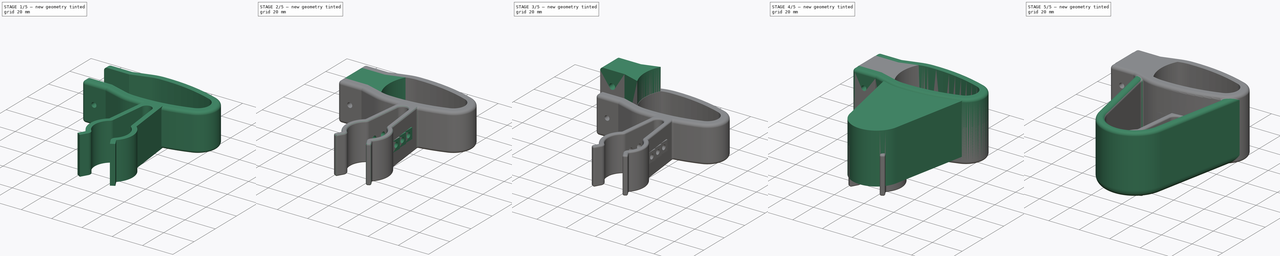
[diagram: build sequence overview — one tinted view per stage of 5, left to right]
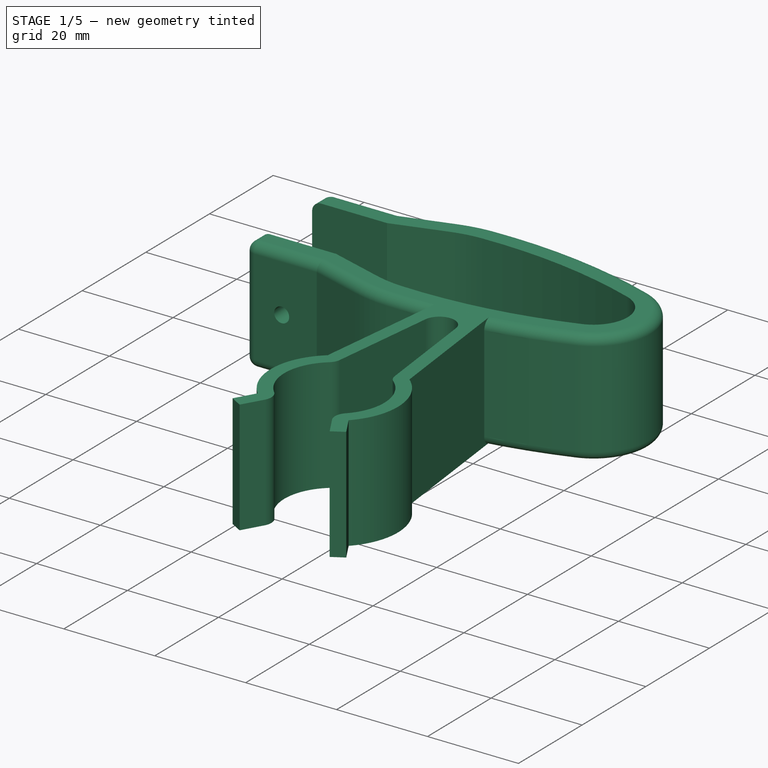
[diagram: stage 1 of 5 — iso view after this stage's code; geometry added in this stage tinted green]
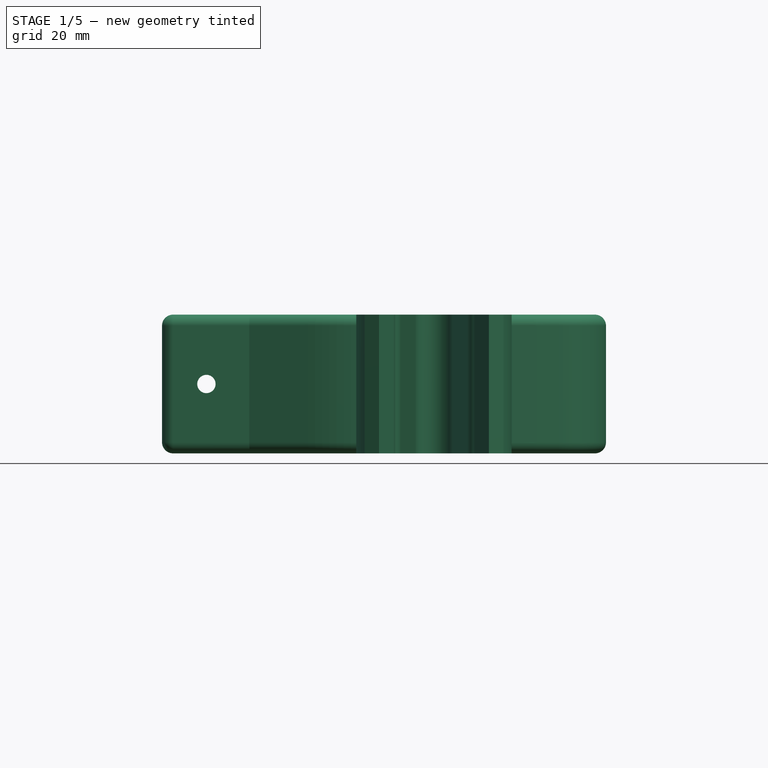
[diagram: stage 1 of 5 — front view after this stage's code; geometry added in this stage tinted green]
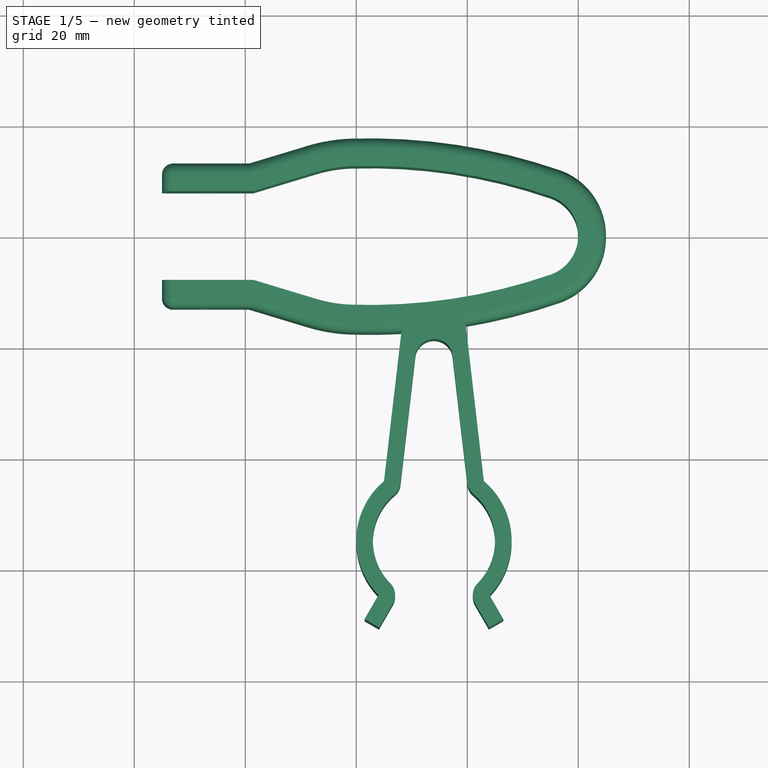
[diagram: stage 1 of 5 — top view after this stage's code; geometry added in this stage tinted green]
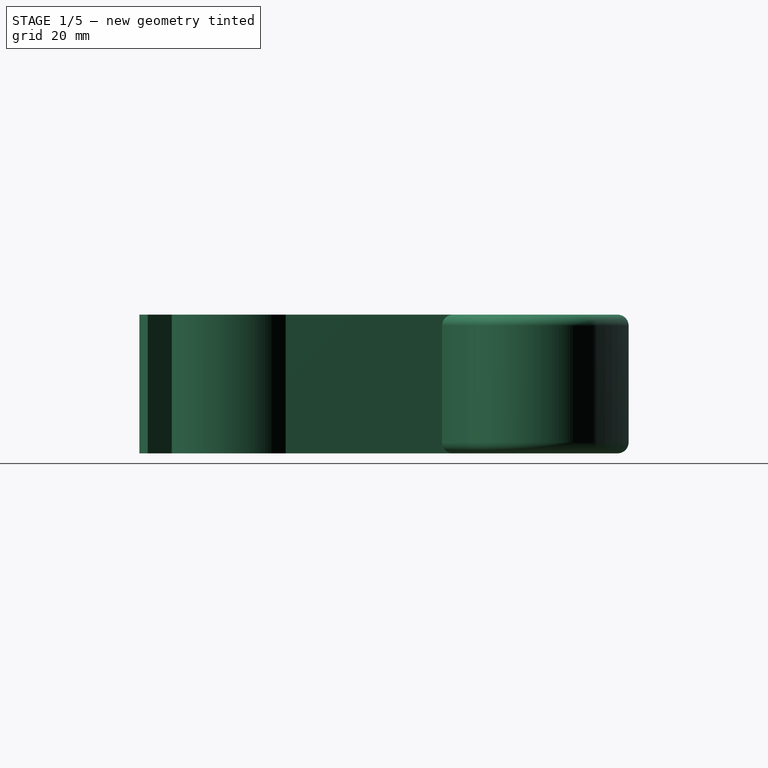
[diagram: stage 1 of 5 — right view after this stage's code; geometry added in this stage tinted green]
FCSTD DOCUMENT  (FreeCAD 0.21R30193 (Git))
Label: Cane-rest
License: All rights reserved
LicenseURL: http://en.wikipedia.org/wiki/All_rights_reserved
objects: Sketcher::SketchObject×13, PartDesign::Pad×7, PartDesign::Fillet×6, PartDesign::Pocket×6, PartDesign::Body×5, PartDesign::Thickness×3, Part::MultiFuse×1, Part::Fillet×1
note: 64 computed .brp shape members not serialized (recipe doc carries the construction recipe); baked Part::Feature solids carry a one-line shape summary decoded from their .brp

FEATURE [PartDesign::Body] Body002  label="Bottom-Block"
  Group = -> [Sketch004,Pad002,Sketch005,Pocket002,Fillet003]
  Origin = -> Origin002
  Placement = pos=(-30,0,0) rot=(0,0,1;0rad)
  Tip = -> Fillet003
FEATURE [Sketcher::SketchObject] Sketch006
  FullyConstrained = false
  MapMode = 5
  Support = -> [XY_Plane003]
  expr: Constraints[12] = Sketch.Constraints[12]
  expr: Constraints[19] = Sketch.Constraints[19]
  expr: Constraints[20] = Sketch.Constraints[20]
  expr: Constraints[21] = Sketch.Constraints[21]
  expr: Constraints[27] = Sketch.Constraints[27]
  expr: Constraints[37] = Sketch.Constraints[37]
  expr: Constraints[3] = Sketch.Constraints[3]
  expr: Constraints[40] = Sketch.Constraints[40]
  expr: Constraints[4] = Sketch.Constraints[4]
  sketch-geometry (16):
    g0: ArcOfCircle CenterX=32.5 CenterY=0 CenterZ=0 NormalX=0 NormalY=0 NormalZ=1 AngleXU=0 Radius=7.5 StartAngle=5.04366 EndAngle=7.52271
    g1: GeomPoint X=40 Y=0 Z=0
    g2: ArcOfCircle CenterX=0 CenterY=-12.5097 CenterZ=0 NormalX=0 NormalY=0 NormalZ=1 AngleXU=0 Radius=25 StartAngle=1.603 EndAngle=1.86459
    g3: ArcOfCircle CenterX=0 CenterY=12.5097 CenterZ=0 NormalX=0 NormalY=0 NormalZ=1 AngleXU=0 Radius=25 StartAngle=4.41859 EndAngle=4.68018
    g4: GeomPoint X=0 Y=13.7207 Z=0
    g5: ArcOfCircle CenterX=15 CenterY=0 CenterZ=0 NormalX=0 NormalY=0 NormalZ=1 AngleXU=0 Radius=25 StartAngle=2.66724 EndAngle=3.61594
    g6: GeomPoint X=-10 Y=0 Z=0
    g7: ArcOfCircle CenterX=2.41506 CenterY=-87.4708 CenterZ=0 NormalX=0 NormalY=0 NormalZ=1 AngleXU=0 Radius=100 StartAngle=1.23953 EndAngle=1.603
    g8: ArcOfCircle CenterX=2.41506 CenterY=87.4708 CenterZ=0 NormalX=0 NormalY=0 NormalZ=1 AngleXU=0 Radius=100 StartAngle=4.68018 EndAngle=5.04366
    g9: GeomPoint X=0 Y=12.5 Z=0
    g10: GeomPoint X=0 Y=-12.5 Z=0
    g11: LineSegment StartX=-7.23972 StartY=11.4191 StartZ=0 EndX=-18.5404 EndY=8 EndZ=0
    g12: LineSegment StartX=-18.5404 StartY=8 StartZ=0 EndX=-35 EndY=8 EndZ=0
    g13: LineSegment StartX=-35 StartY=8 StartZ=0 EndX=-35 EndY=-8 EndZ=0
    g14: LineSegment StartX=-35 StartY=-8 StartZ=0 EndX=-18.5404 EndY=-8 EndZ=0
    g15: LineSegment StartX=-18.5404 StartY=-8 StartZ=0 EndX=-7.23972 EndY=-11.4191 EndZ=0
  constraints (41):
    c: PointOnObject(g0,g-1)
    c: PointOnObject(g1,g0)
    c: PointOnObject(g1,g-1)
    c: DistanceX(g1) = 40
    c: Diameter(g0) = 15
    c: PointOnObject(g2,g-2)
    c: Equal(g3,g2)
    c: Vertical(g3,g2)
    c: Vertical(g3,g2)
    c: Vertical(g0,g0)
    c: PointOnObject(g6,g5)
    c: PointOnObject(g6,g-1)
    c: DistanceX(g6,g1) = 50
    c: Coincident(g3,g5)
    c: Coincident(g5,g2)
    c: Coincident(g7,g0)
    c: Tangent(g7,g2) = -1.5708
    c: Tangent(g8,g3) = -1.5708
    c: Tangent(g8,g0) = -1.5708
    c: Radius(g2) = 25
    c: Radius(g5) = 25
    c: Radius(g7) = 100
    c: PointOnObject(g3,g-2)
    c: PointOnObject(g9,g7)
    c: PointOnObject(g10,g8)
    c: PointOnObject(g10,g-2)
    c: PointOnObject(g9,g-2)
    c: DistanceY(g10,g9) = 25
    c: Tangent(g2,g11) = -1.5708
    c: Coincident(g11,g12)
    c: Horizontal(g12)
    c: Coincident(g12,g13)
    c: Vertical(g13)
    c: Coincident(g13,g14)
    c: Horizontal(g14)
    c: Coincident(g14,g15)
    c: Coincident(g15,g3)
    c: DistanceX(g12,g6) = 25
    c: PointOnObject(g5,g-1)
    c: Symmetric(g14,g11,g-1)
    c: DistanceY(g13,g13) = 16
FEATURE [PartDesign::Pad] Pad003
  Direction = (0,0,1)
  Length = 25
  Length2 = 10
  Profile = -> Sketch006
  ReferenceAxis = -> Sketch006 [N_Axis]
  Type = 0
FEATURE [PartDesign::Thickness] Thickness002
  Base = -> Pad003 [Face12,Face6,Face11]
  BaseFeature = -> Pad003
  Intersection = false
  Join = 1
  Mode = 0
  SupportTransform = false
  Value = 5
FEATURE [PartDesign::Fillet] Fillet004
  Base = -> Thickness002 [Edge32,Edge30,Edge29,Edge42,Edge38,Edge39,Edge40,Edge41,Edge43,Edge52,Edge44,Edge51]
  BaseFeature = -> Thickness002
  Radius = 2
  SupportTransform = false
  UseAllEdges = false
FEATURE [Sketcher::SketchObject] Sketch007
  FullyConstrained = true
  MapMode = 5
  Placement = pos=(0,0,0) rot=(1,0,0;1.5708rad)
  Support = -> [XZ_Plane003]
  sketch-geometry (1):
    g0: Circle CenterX=-27 CenterY=12.5 CenterZ=0 NormalX=0 NormalY=0 NormalZ=1 AngleXU=0 Radius=1.65
  constraints (3):
    c: Diameter(g0) = 3.3
    c: DistanceX(g0) = -27
    c: DistanceY(g0) = 12.5
FEATURE [PartDesign::Pocket] Pocket003
  BaseFeature = -> Fillet004
  Direction = (0,1,2e-16)
  Length = 5
  Length2 = 5
  Midplane = true
  Profile = -> Sketch007
  ReferenceAxis = -> Sketch007 [N_Axis]
  Type = 1
FEATURE [PartDesign::Body] Body004  label="Upper-Block"
  Group = -> [Sketch008,Pad004,Fillet005,Sketch009,Pocket004]
  Origin = -> Origin004
  Placement = pos=(90,0,0) rot=(0,0,1;0rad)
  Tip = -> Pocket004
FEATURE [Sketcher::SketchObject] Sketch010
  AttachmentOffset = pos=(0,0,0.01) rot=(0,0,1;0rad)
  FullyConstrained = false
  MapMode = 5
  Placement = pos=(0,0,0.01) rot=(0,0,1;0rad)
  Support = -> [XY_Plane003]
  sketch-geometry (25):
    g0: LineSegment StartX=14 StartY=0 StartZ=0 EndX=14 EndY=-55 EndZ=0
    g1: ArcOfCircle CenterX=14 CenterY=-55 CenterZ=0 NormalX=0 NormalY=0 NormalZ=1 AngleXU=0 Radius=11 StartAngle=5.50799 EndAngle=7.15576
    g2: ArcOfCircle CenterX=14 CenterY=-55 CenterZ=0 NormalX=0 NormalY=0 NormalZ=1 AngleXU=0 Radius=14 StartAngle=5.50799 EndAngle=7.15576
    g3: ArcOfCircle CenterX=14 CenterY=-55 CenterZ=0 NormalX=0 NormalY=0 NormalZ=1 AngleXU=0 Radius=11 StartAngle=2.26902 EndAngle=3.91679
    g4: ArcOfCircle CenterX=14 CenterY=-55 CenterZ=0 NormalX=0 NormalY=0 NormalZ=1 AngleXU=0 Radius=14 StartAngle=2.26902 EndAngle=3.91679
    g5: ArcOfCircle CenterX=24 CenterY=-64.798 CenterZ=0 NormalX=0 NormalY=0 NormalZ=1 AngleXU=0 Radius=3 StartAngle=2.3664 EndAngle=3.66519
    g6: ArcOfCircle CenterX=4 CenterY=-64.798 CenterZ=0 NormalX=0 NormalY=0 NormalZ=1 AngleXU=0 Radius=3 StartAngle=5.75959 EndAngle=7.05838
    g7: LineSegment StartX=14 StartY=-55 StartZ=0 EndX=24 EndY=-64.798 EndZ=0
    g8: LineSegment StartX=14 StartY=-55 StartZ=0 EndX=4 EndY=-64.798 EndZ=0
    g9: LineSegment StartX=14 StartY=-55 StartZ=0 EndX=23 EndY=-44.2762 EndZ=0
    g10: LineSegment StartX=14 StartY=-55 StartZ=0 EndX=5 EndY=-44.2762 EndZ=0
    g11: LineSegment StartX=6.59808 StartY=-66.298 StartZ=0 EndX=4.09808 EndY=-70.6281 EndZ=0
    g12: LineSegment StartX=4.09808 StartY=-70.6281 StartZ=0 EndX=1.5 EndY=-69.1281 EndZ=0
    g13: LineSegment StartX=1.5 StartY=-69.1281 StartZ=0 EndX=4 EndY=-64.798 EndZ=0
    g14: LineSegment StartX=21.4019 StartY=-66.298 StartZ=0 EndX=23.9019 EndY=-70.6281 EndZ=0
    g15: LineSegment StartX=23.9019 StartY=-70.6281 StartZ=0 EndX=26.5 EndY=-69.1281 EndZ=0
    g16: LineSegment StartX=26.5 StartY=-69.1281 StartZ=0 EndX=24 EndY=-64.798 EndZ=0
    g17: ArcOfCircle CenterX=5 CenterY=-44.2762 CenterZ=0 NormalX=0 NormalY=0 NormalZ=1 AngleXU=0 Radius=3 StartAngle=5.41061 EndAngle=6.16731
    g18: ArcOfCircle CenterX=23 CenterY=-44.2762 CenterZ=0 NormalX=0 NormalY=0 NormalZ=1 AngleXU=0 Radius=3 StartAngle=3.25747 EndAngle=4.01417
    g19: ArcOfCircle CenterX=14 CenterY=-22 CenterZ=0 NormalX=0 NormalY=0 NormalZ=1 AngleXU=0 Radius=3.36414 StartAngle=0.115876 EndAngle=3.02572
    g20: LineSegment StartX=10.6584 StartY=-21.611 StartZ=0 EndX=7.97988 EndY=-44.623 EndZ=0
    g21: LineSegment StartX=17.3416 StartY=-21.611 StartZ=0 EndX=20.0201 EndY=-44.623 EndZ=0
    g22: LineSegment StartX=23 StartY=-44.2762 StartZ=0 EndX=19.3478 EndY=-12.8992 EndZ=0
    g23: LineSegment StartX=19.3478 StartY=-12.8992 StartZ=0 EndX=8.51609 EndY=-14.0685 EndZ=0
    g24: LineSegment StartX=8.51609 StartY=-14.0685 StartZ=0 EndX=5 EndY=-44.2762 EndZ=0
  constraints (62):
    c: PointOnObject(g0,g-1)
    c: Vertical(g0)
    c: DistanceY(g0,g0) = 55
    c: DistanceX(g0) = 14
    c: Coincident(g1,g0)
    c: Coincident(g2,g1)
    c: Coincident(g3,g1)
    c: Coincident(g4,g1)
    c: Coincident(g5,g2)
    c: Coincident(g5,g1)
    c: Coincident(g6,g4)
    c: Coincident(g6,g3)
    c: Equal(g5,g6)
    c: Coincident(g7,g1)
    c: Coincident(g7,g2)
    c: Coincident(g8,g1)
    c: Coincident(g8,g4)
    c: Coincident(g9,g1)
    c: Coincident(g9,g2)
    c: Coincident(g10,g1)
    c: Coincident(g10,g4)
    c: PointOnObject(g3,g10)
    c: PointOnObject(g1,g9)
    c: PointOnObject(g1,g7)
    c: PointOnObject(g3,g8)
    c: Symmetric(g4,g2,g0)
    c: Tangent(g6,g11) = 1.5708
    c: Coincident(g11,g12)
    c: Coincident(g12,g13)
    c: Coincident(g13,g4)
    c: Tangent(g5,g14) = -1.5708
    c: Coincident(g14,g15)
    c: Coincident(g15,g16)
    c: Coincident(g16,g2)
    c: Parallel(g11,g13)
    c: Parallel(g16,g14)
    c: Perpendicular(g15,g14)
    c: Perpendicular(g12,g11)
    c: Radius(g1) = 11
    c: Radius(g5) = 3
    c: Angle(g11,g-2) = 0.523599
    c: Symmetric(g11,g14,g0)
    c: DistanceX(g4,g2) = 20
    c: Distance(g11) = 5
    c: Symmetric(g2,g4,g0)
    c: DistanceX(g4,g2) = 18
    c: Coincident(g17,g4)
    c: Coincident(g17,g3)
    c: Coincident(g18,g2)
    c: Coincident(g18,g1)
    c: PointOnObject(g19,g0)
    c: Coincident(g2,g22)
    c: Coincident(g22,g23)
    c: Coincident(g23,g24)
    c: Coincident(g24,g4)
    c: Parallel(g24,g20)
    c: Parallel(g22,g21)
    c: Tangent(g20,g19) = -1.5708
    c: Tangent(g21,g19) = 1.5708
    c: Tangent(g21,g18) = -1.5708
    c: Tangent(g20,g17) = 1.5708
    c: DistanceY(g19) = -22
FEATURE [PartDesign::Pad] Pad005
  BaseFeature = -> Pocket003
  Direction = (0,0,1)
  Length = 24.98
  Length2 = 10
  Profile = -> Sketch010
  ReferenceAxis = -> Sketch010 [N_Axis]
  Type = 0
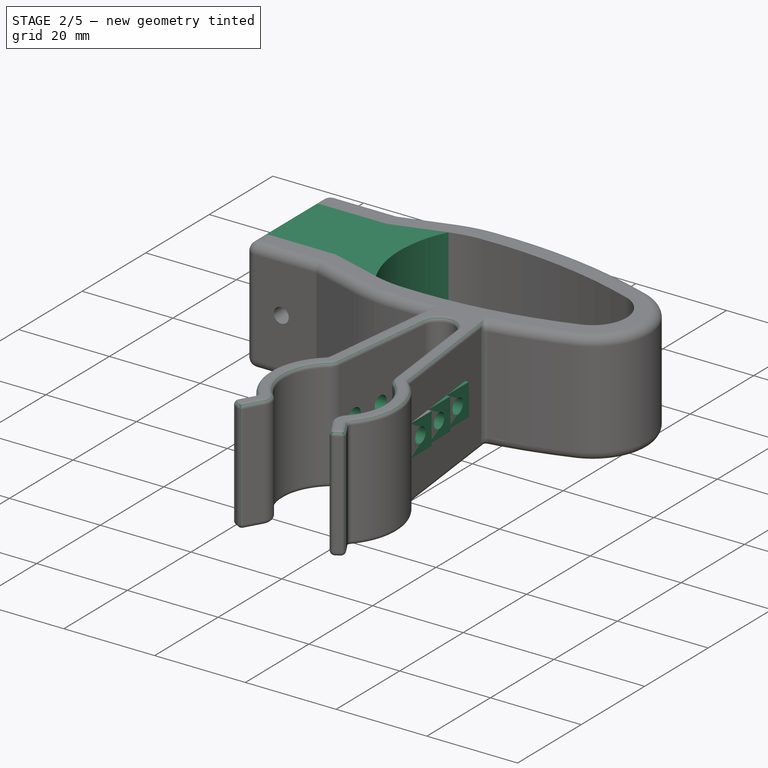
[diagram: stage 2 of 5 — iso view after this stage's code; geometry added in this stage tinted green]
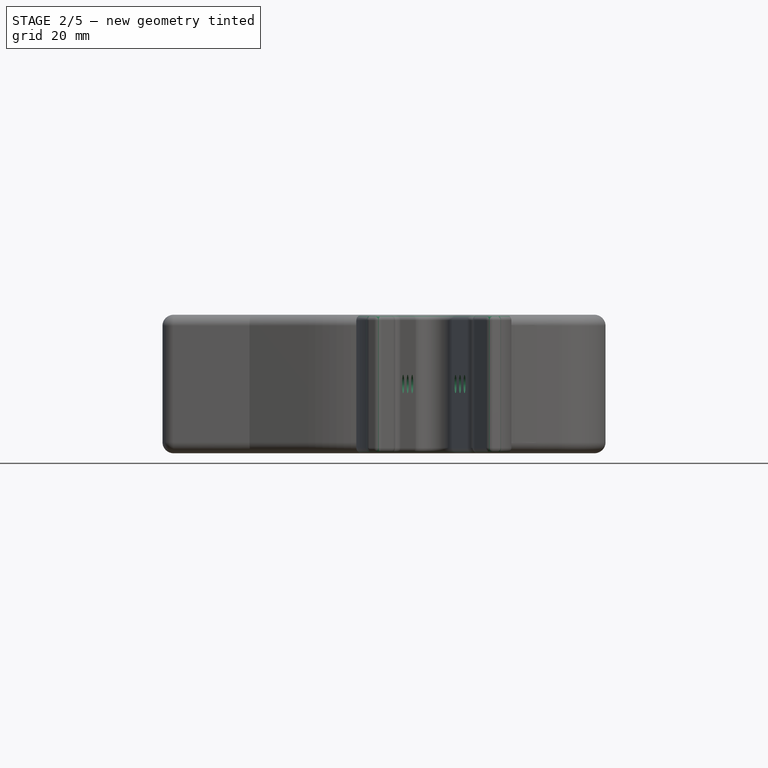
[diagram: stage 2 of 5 — front view after this stage's code; geometry added in this stage tinted green]
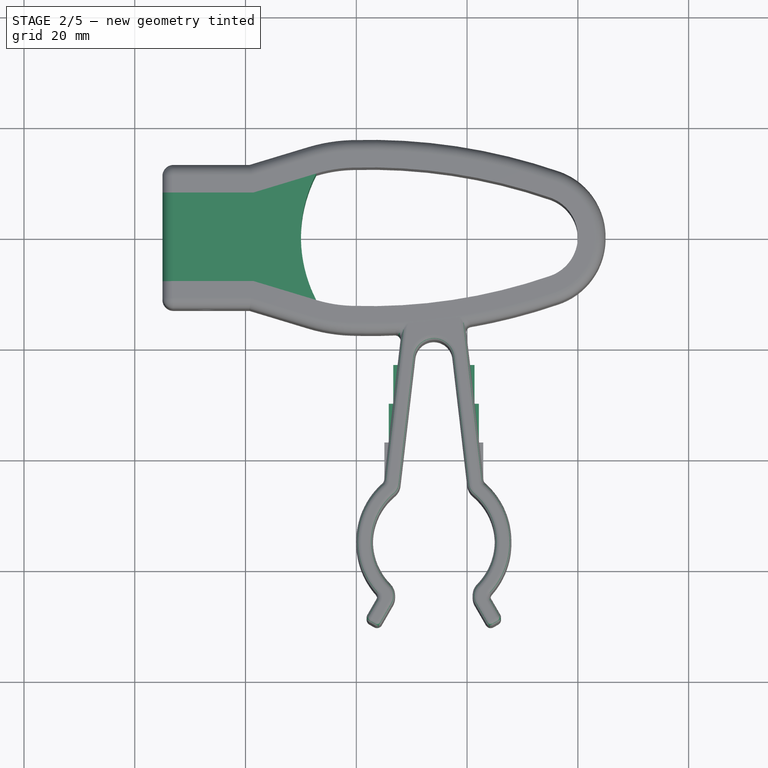
[diagram: stage 2 of 5 — top view after this stage's code; geometry added in this stage tinted green]
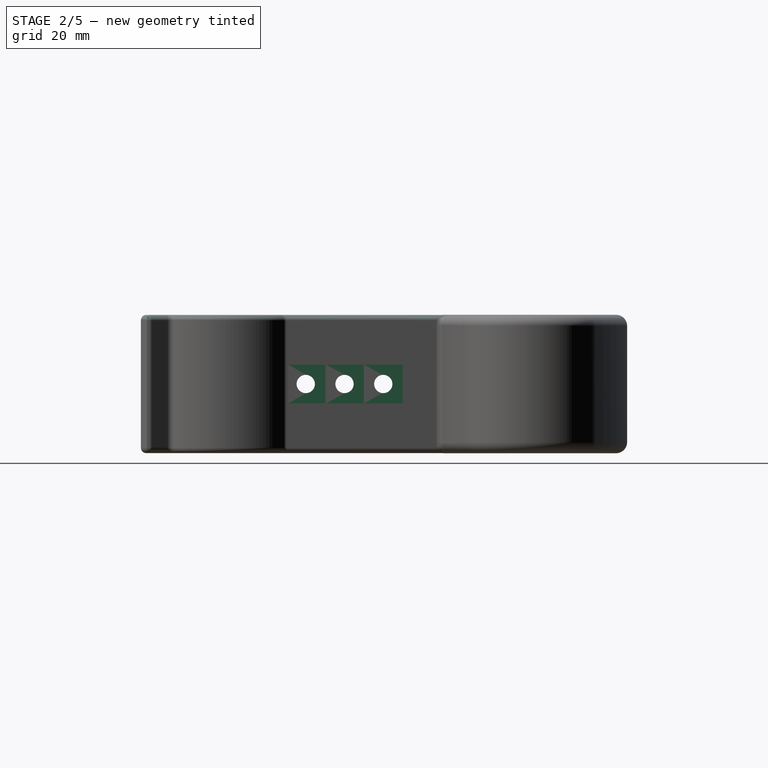
[diagram: stage 2 of 5 — right view after this stage's code; geometry added in this stage tinted green]
FEATURE [Sketcher::SketchObject] Sketch008
  FullyConstrained = false
  MapMode = 5
  Support = -> [XY_Plane004]
  expr: Constraints[12] = Sketch006.Constraints[12]
  expr: Constraints[19] = Sketch006.Constraints[19]
  expr: Constraints[20] = Sketch006.Constraints[20]
  expr: Constraints[21] = Sketch006.Constraints[21]
  expr: Constraints[27] = Sketch006.Constraints[27]
  expr: Constraints[37] = Sketch006.Constraints[37]
  expr: Constraints[3] = Sketch006.Constraints[3]
  expr: Constraints[40] = Sketch006.Constraints[40]
  expr: Constraints[4] = Sketch006.Constraints[4]
  sketch-geometry (16):
    g0: ArcOfCircle CenterX=32.5 CenterY=0 CenterZ=0 NormalX=0 NormalY=0 NormalZ=1 AngleXU=0 Radius=7.5 StartAngle=5.04366 EndAngle=7.52271
    g1: GeomPoint X=40 Y=0 Z=0
    g2: ArcOfCircle CenterX=0 CenterY=-12.5097 CenterZ=0 NormalX=0 NormalY=0 NormalZ=1 AngleXU=0 Radius=25 StartAngle=1.603 EndAngle=1.86459
    g3: ArcOfCircle CenterX=0 CenterY=12.5097 CenterZ=0 NormalX=0 NormalY=0 NormalZ=1 AngleXU=0 Radius=25 StartAngle=4.41859 EndAngle=4.68018
    g4: GeomPoint X=0 Y=13.7207 Z=0
    g5: ArcOfCircle CenterX=15 CenterY=0 CenterZ=0 NormalX=0 NormalY=0 NormalZ=1 AngleXU=0 Radius=25 StartAngle=2.66724 EndAngle=3.61594
    g6: GeomPoint X=-10 Y=0 Z=0
    g7: ArcOfCircle CenterX=2.41506 CenterY=-87.4708 CenterZ=0 NormalX=0 NormalY=0 NormalZ=1 AngleXU=0 Radius=100 StartAngle=1.23953 EndAngle=1.603
    g8: ArcOfCircle CenterX=2.41506 CenterY=87.4708 CenterZ=0 NormalX=0 NormalY=0 NormalZ=1 AngleXU=0 Radius=100 StartAngle=4.68018 EndAngle=5.04366
    g9: GeomPoint X=0 Y=12.5 Z=0
    g10: GeomPoint X=0 Y=-12.5 Z=0
    g11: LineSegment StartX=-7.23972 StartY=11.4191 StartZ=0 EndX=-18.5404 EndY=8 EndZ=0
    g12: LineSegment StartX=-18.5404 StartY=8 StartZ=0 EndX=-35 EndY=8 EndZ=0
    g13: LineSegment StartX=-35 StartY=8 StartZ=0 EndX=-35 EndY=-8 EndZ=0
    g14: LineSegment StartX=-35 StartY=-8 StartZ=0 EndX=-18.5404 EndY=-8 EndZ=0
    g15: LineSegment StartX=-18.5404 StartY=-8 StartZ=0 EndX=-7.23972 EndY=-11.4191 EndZ=0
  constraints (41):
    c: PointOnObject(g0,g-1)
    c: PointOnObject(g1,g0)
    c: PointOnObject(g1,g-1)
    c: DistanceX(g1) = 40
    c: Diameter(g0) = 15
    c: PointOnObject(g2,g-2)
    c: Equal(g3,g2)
    c: Vertical(g3,g2)
    c: Vertical(g3,g2)
    c: Vertical(g0,g0)
    c: PointOnObject(g6,g5)
    c: PointOnObject(g6,g-1)
    c: DistanceX(g6,g1) = 50
    c: Coincident(g3,g5)
    c: Coincident(g5,g2)
    c: Coincident(g7,g0)
    c: Tangent(g7,g2) = -1.5708
    c: Tangent(g8,g3) = -1.5708
    c: Tangent(g8,g0) = -1.5708
    c: Radius(g2) = 25
    c: Radius(g5) = 25
    c: Radius(g7) = 100
    c: PointOnObject(g3,g-2)
    c: PointOnObject(g9,g7)
    c: PointOnObject(g10,g8)
    c: PointOnObject(g10,g-2)
    c: PointOnObject(g9,g-2)
    c: DistanceY(g10,g9) = 25
    c: Tangent(g2,g11) = -1.5708
    c: Coincident(g11,g12)
    c: Horizontal(g12)
    c: Coincident(g12,g13)
    c: Vertical(g13)
    c: Coincident(g13,g14)
    c: Horizontal(g14)
    c: Coincident(g14,g15)
    c: Coincident(g15,g3)
    c: DistanceX(g12,g6) = 25
    c: PointOnObject(g5,g-1)
    c: Symmetric(g14,g11,g-1)
    c: DistanceY(g13,g13) = 16
FEATURE [PartDesign::Pad] Pad004
  Direction = (0,0,1)
  Length = 25
  Length2 = 10
  Profile = -> Sketch008
  ReferenceAxis = -> Sketch008 [N_Axis]
  Type = 0
FEATURE [PartDesign::Fillet] Fillet005
  Base = -> Pad004 [Edge13,Edge12]
  BaseFeature = -> Pad004
  Radius = 2
  SupportTransform = false
  UseAllEdges = false
FEATURE [PartDesign::Fillet] Fillet006
  Base = -> Pad005 [Face47,Face70,Face69,Face68,Face67,Face45,Face58,Face71,Face72]
  BaseFeature = -> Pad005
  Radius = 1
  SupportTransform = false
  UseAllEdges = false
FEATURE [Sketcher::SketchObject] Sketch011
  AttachmentOffset = pos=(0,0,12.5) rot=(0,0,1;0rad)
  FullyConstrained = false
  MapMode = 5
  Placement = pos=(0,0,12.5) rot=(0,0,1;0rad)
  Support = -> [XY_Plane003]
  sketch-geometry (17):
    g0: LineSegment StartX=14 StartY=0 StartZ=0 EndX=14 EndY=-40.9717 EndZ=0
    g1: LineSegment StartX=6.52173 StartY=-44 StartZ=0 EndX=5.07323 EndY=-44 EndZ=0
    g2: LineSegment StartX=5.07323 StartY=-44 StartZ=0 EndX=5.07323 EndY=-37 EndZ=0
    g3: LineSegment StartX=5.07323 StartY=-37 StartZ=0 EndX=5.867 EndY=-37 EndZ=0
    g4: LineSegment StartX=5.867 StartY=-37 StartZ=0 EndX=5.867 EndY=-30 EndZ=0
    g5: LineSegment StartX=5.867 StartY=-30 StartZ=0 EndX=6.66078 EndY=-30 EndZ=0
    g6: LineSegment StartX=6.66078 StartY=-30 StartZ=0 EndX=6.66078 EndY=-23 EndZ=0
    g7: LineSegment StartX=6.66078 StartY=-23 StartZ=0 EndX=9.16421 EndY=-23 EndZ=0
    g8: LineSegment StartX=9.16421 StartY=-23 StartZ=0 EndX=6.52173 EndY=-44 EndZ=0
    g9: LineSegment StartX=21.4783 StartY=-44 StartZ=0 EndX=22.9268 EndY=-44 EndZ=0
    g10: LineSegment StartX=22.9268 StartY=-44 StartZ=0 EndX=22.9268 EndY=-37 EndZ=0
    g11: LineSegment StartX=22.9268 StartY=-37 StartZ=0 EndX=22.133 EndY=-37 EndZ=0
    g12: LineSegment StartX=22.133 StartY=-37 StartZ=0 EndX=22.133 EndY=-30 EndZ=0
    g13: LineSegment StartX=22.133 StartY=-30 StartZ=0 EndX=21.3392 EndY=-30 EndZ=0
    g14: LineSegment StartX=21.3392 StartY=-30 StartZ=0 EndX=21.3392 EndY=-23 EndZ=0
    g15: LineSegment StartX=21.3392 StartY=-23 StartZ=0 EndX=18.8358 EndY=-23 EndZ=0
    g16: LineSegment StartX=18.8358 StartY=-23 StartZ=0 EndX=21.4783 EndY=-44 EndZ=0
  constraints (46):
    c: PointOnObject(g0,g-1)
    c: Vertical(g0)
    c: DistanceX(g0) = 14
    c: Horizontal(g1)
    c: Coincident(g1,g2)
    c: Vertical(g2)
    c: Coincident(g2,g3)
    c: Horizontal(g3)
    c: Coincident(g3,g4)
    c: Vertical(g4)
    c: Coincident(g4,g5)
    c: Coincident(g5,g6)
    c: Vertical(g6)
    c: Coincident(g6,g7)
    c: Coincident(g7,g8)
    c: Coincident(g8,g1)
    c: Horizontal(g9)
    c: Coincident(g9,g10)
    c: Vertical(g10)
    c: Coincident(g10,g11)
    c: Horizontal(g11)
    c: Coincident(g11,g12)
    c: Vertical(g12)
    c: Coincident(g12,g13)
    c: Horizontal(g13)
    c: Coincident(g13,g14)
    c: Vertical(g14)
    c: Coincident(g14,g15)
    c: Horizontal(g15)
    c: Coincident(g15,g16)
    c: Coincident(g16,g9)
    c: Equal(g10,g12)
    c: Equal(g12,g14)
    c: Equal(g14,g6)
    c: Equal(g6,g4)
    c: Equal(g4,g2)
    c: DistanceY(g10,g10) = 7
    c: Symmetric(g9,g1,g0)
    c: Equal(g9,g1)
    c: Horizontal(g7)
    c: Equal(g15,g7)
    c: Horizontal(g5)
    c: Equal(g11,g13)
    c: Equal(g13,g5)
    c: Equal(g5,g3)
    c: DistanceY(g14) = -23
FEATURE [PartDesign::Pad] Pad006
  BaseFeature = -> Fillet006
  Direction = (0,0,1)
  Length = 7
  Length2 = 10
  Midplane = true
  Profile = -> Sketch011
  ReferenceAxis = -> Sketch011 [N_Axis]
  Type = 0
FEATURE [Sketcher::SketchObject] Sketch012
  FullyConstrained = true
  MapMode = 5
  Placement = pos=(0,0,0) rot=(0.57735,0.57735,0.57735;2.0944rad)
  Support = -> [YZ_Plane003]
  sketch-geometry (3):
    g0: Circle CenterX=-40.5 CenterY=12.5 CenterZ=0 NormalX=0 NormalY=0 NormalZ=1 AngleXU=0 Radius=1.65
    g1: Circle CenterX=-33.5 CenterY=12.5 CenterZ=0 NormalX=0 NormalY=0 NormalZ=1 AngleXU=0 Radius=1.65
    g2: Circle CenterX=-26.5 CenterY=12.5 CenterZ=0 NormalX=0 NormalY=0 NormalZ=1 AngleXU=0 Radius=1.65
  constraints (9):
    c: Horizontal(g2,g1)
    c: Horizontal(g1,g0)
    c: Equal(g2,g1)
    c: Equal(g1,g0)
    c: Diameter(g2) = 3.3
    c: DistanceX(g1,g2) = 7
    c: DistanceX(g0,g1) = 7
    c: DistanceY(g2) = 12.5
    c: DistanceX(g2) = -26.5
FEATURE [PartDesign::Pocket] Pocket005
  BaseFeature = -> Pad006
  Direction = (-1,2e-16,-3e-16)
  Length = 5
  Length2 = 5
  Midplane = true
  Profile = -> Sketch012
  ReferenceAxis = -> Sketch012 [N_Axis]
  Type = 1
FEATURE [PartDesign::Body] Body003  label="Upper-Clamp"
  Group = -> [Sketch006,Pad003,Thickness002,Fillet004,Sketch007,Pocket003,Sketch010,Pad005,Fillet006,Sketch011,Pad006,Sketch012,Pocket005]
  Origin = -> Origin003
  Placement = pos=(120,0,0) rot=(0,0,1;0rad)
  Tip = -> Pocket005
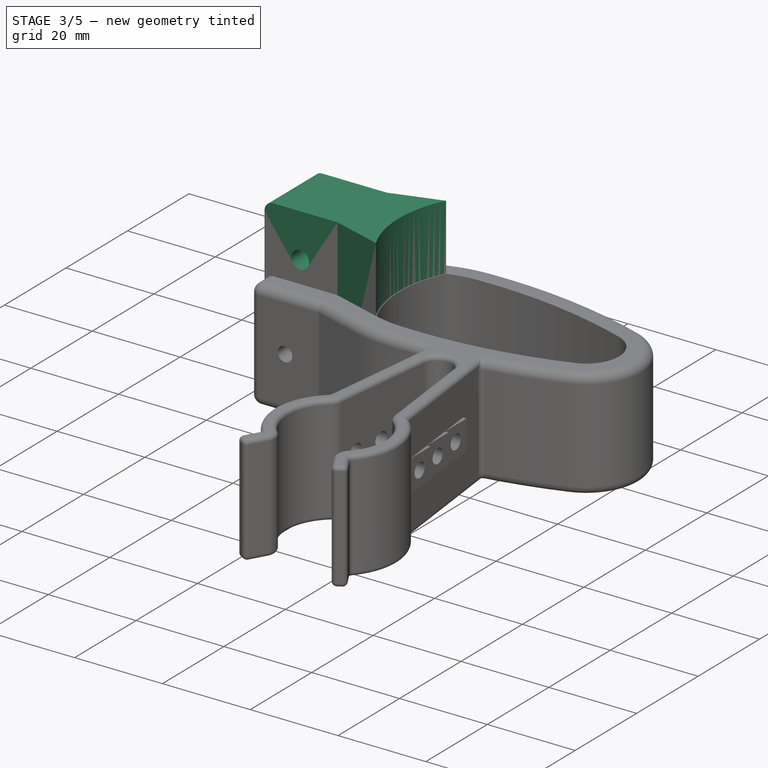
[diagram: stage 3 of 5 — iso view after this stage's code; geometry added in this stage tinted green]
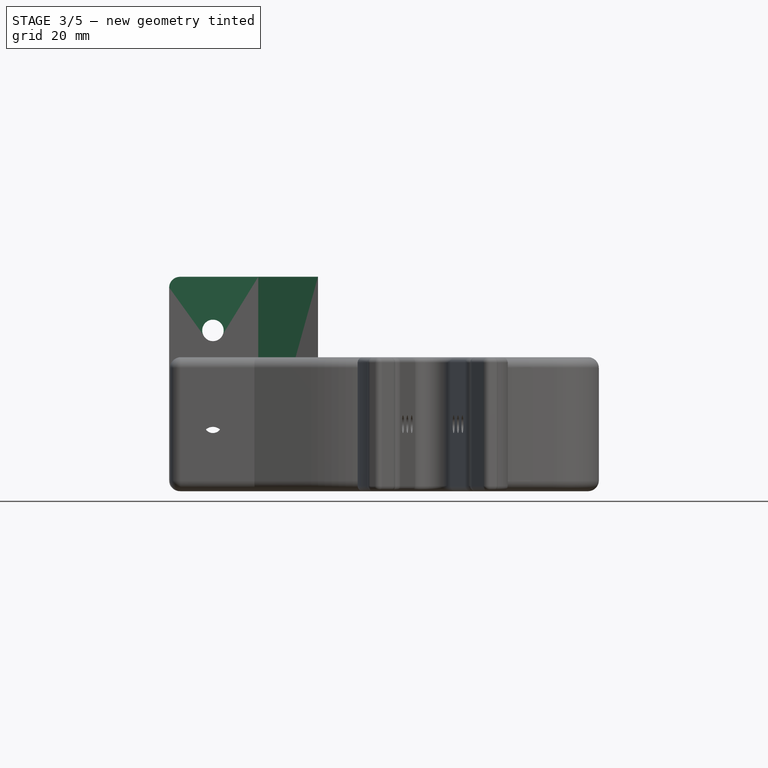
[diagram: stage 3 of 5 — front view after this stage's code; geometry added in this stage tinted green]
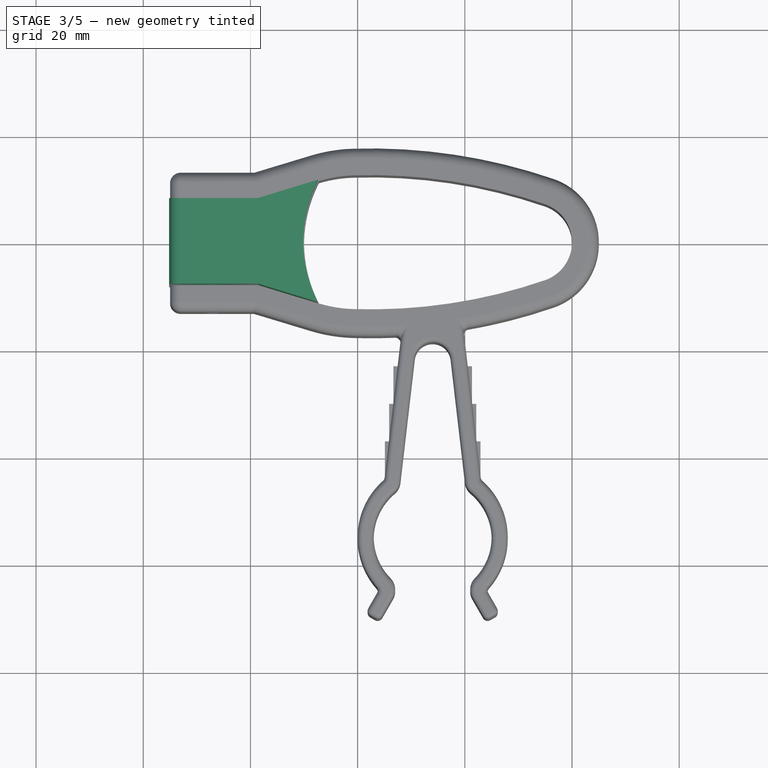
[diagram: stage 3 of 5 — top view after this stage's code; geometry added in this stage tinted green]
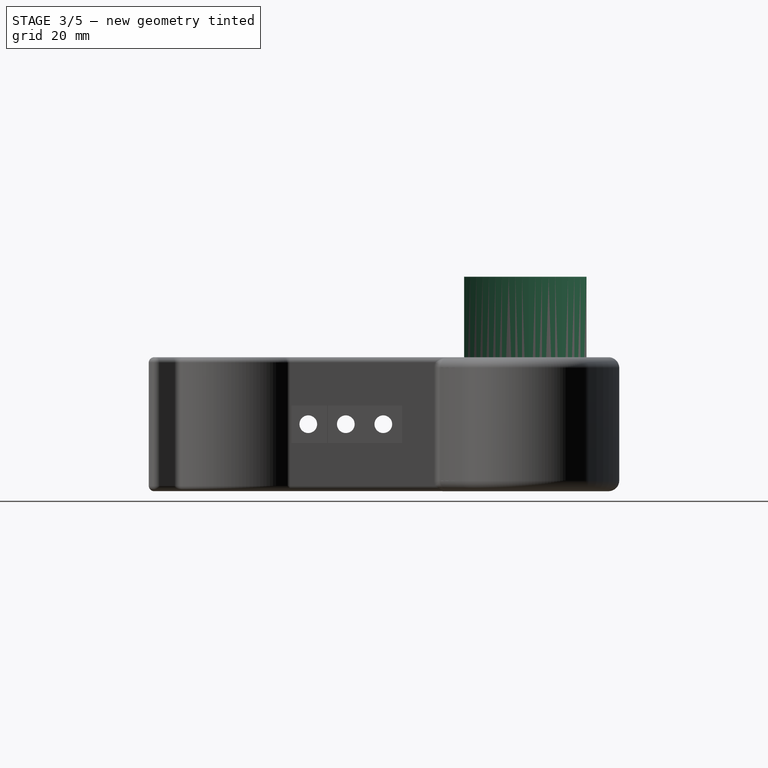
[diagram: stage 3 of 5 — right view after this stage's code; geometry added in this stage tinted green]
FEATURE [Sketcher::SketchObject] Sketch004
  FullyConstrained = false
  MapMode = 5
  Support = -> [XY_Plane002]
  sketch-geometry (10):
    g0: GeomPoint X=0 Y=13.7207 Z=0
    g1: ArcOfCircle CenterX=14.8349 CenterY=0 CenterZ=0 NormalX=0 NormalY=0 NormalZ=1 AngleXU=0 Radius=25 StartAngle=2.66724 EndAngle=3.61594
    g2: GeomPoint X=-10.1651 Y=0 Z=0
    g3: GeomPoint X=0 Y=12.5 Z=0
    g4: GeomPoint X=0 Y=-12.5 Z=0
    g5: LineSegment StartX=-7.40487 StartY=11.419 StartZ=0 EndX=-18.5402 EndY=8 EndZ=0
    g6: LineSegment StartX=-18.5402 StartY=8 StartZ=0 EndX=-35.1651 EndY=8 EndZ=0
    g7: LineSegment StartX=-35.1651 StartY=8 StartZ=0 EndX=-35.1651 EndY=-8 EndZ=0
    g8: LineSegment StartX=-35.1651 StartY=-8 StartZ=0 EndX=-18.5402 EndY=-8 EndZ=0
    g9: LineSegment StartX=-18.5402 StartY=-8 StartZ=0 EndX=-7.40487 EndY=-11.419 EndZ=0
  constraints (20):
    c: Vertical(g1,g1)
    c: PointOnObject(g2,g1)
    c: PointOnObject(g2,g-1)
    c: Radius(g1) = 25
    c: PointOnObject(g4,g-2)
    c: PointOnObject(g3,g-2)
    c: Coincident(g1,g5) = -1.5708
    c: Coincident(g5,g6)
    c: Horizontal(g6)
    c: Coincident(g6,g7)
    c: Vertical(g7)
    c: Coincident(g7,g8)
    c: Horizontal(g8)
    c: Coincident(g8,g9)
    c: DistanceX(g6,g2) = 25
    c: PointOnObject(g1,g-1)
    c: Symmetric(g8,g5,g-1)
    c: DistanceY(g7,g7) = 16
    c: DistanceY(g1,g1) = 22.838
    c: Coincident(g9,g1)
FEATURE [PartDesign::Pad] Pad002
  Direction = (0,0,1)
  Length = 40
  Length2 = 10
  Profile = -> Sketch004
  ReferenceAxis = -> Sketch004 [N_Axis]
  Type = 0
FEATURE [Sketcher::SketchObject] Sketch005
  FullyConstrained = true
  MapMode = 5
  Placement = pos=(0,0,0) rot=(1,0,0;1.5708rad)
  Support = -> [XZ_Plane002]
  sketch-geometry (2):
    g0: Circle CenterX=-27 CenterY=30 CenterZ=0 NormalX=0 NormalY=0 NormalZ=1 AngleXU=0 Radius=2
    g1: Circle CenterX=-27 CenterY=10 CenterZ=0 NormalX=0 NormalY=0 NormalZ=1 AngleXU=0 Radius=2
  constraints (6):
    c: Equal(g1,g0)
    c: Diameter(g0) = 4
    c: Vertical(g1,g0)
    c: DistanceX(g0) = -27
    c: DistanceY(g1,g0) = 20
    c: DistanceY(g1) = 10
FEATURE [PartDesign::Pocket] Pocket002
  BaseFeature = -> Pad002
  Direction = (0,1,2e-16)
  Length = 5
  Length2 = 5
  Midplane = true
  Profile = -> Sketch005
  ReferenceAxis = -> Sketch005 [N_Axis]
  Type = 1
FEATURE [PartDesign::Fillet] Fillet003
  Base = -> Pocket002 [Edge15,Edge12]
  BaseFeature = -> Pocket002
  Radius = 2
  SupportTransform = false
  UseAllEdges = false
FEATURE [Sketcher::SketchObject] Sketch009
  FullyConstrained = true
  MapMode = 5
  Placement = pos=(0,0,0) rot=(1,0,0;1.5708rad)
  Support = -> [XZ_Plane004]
  sketch-geometry (1):
    g0: Circle CenterX=-27 CenterY=12.5 CenterZ=0 NormalX=0 NormalY=0 NormalZ=1 AngleXU=0 Radius=2
  constraints (3):
    c: Diameter(g0) = 4
    c: DistanceX(g0) = -27
    c: DistanceY(g0) = 12.5
FEATURE [PartDesign::Pocket] Pocket004
  BaseFeature = -> Fillet005
  Direction = (0,1,2e-16)
  Length = 5
  Length2 = 5
  Midplane = true
  Profile = -> Sketch009
  ReferenceAxis = -> Sketch009 [N_Axis]
  Type = 1
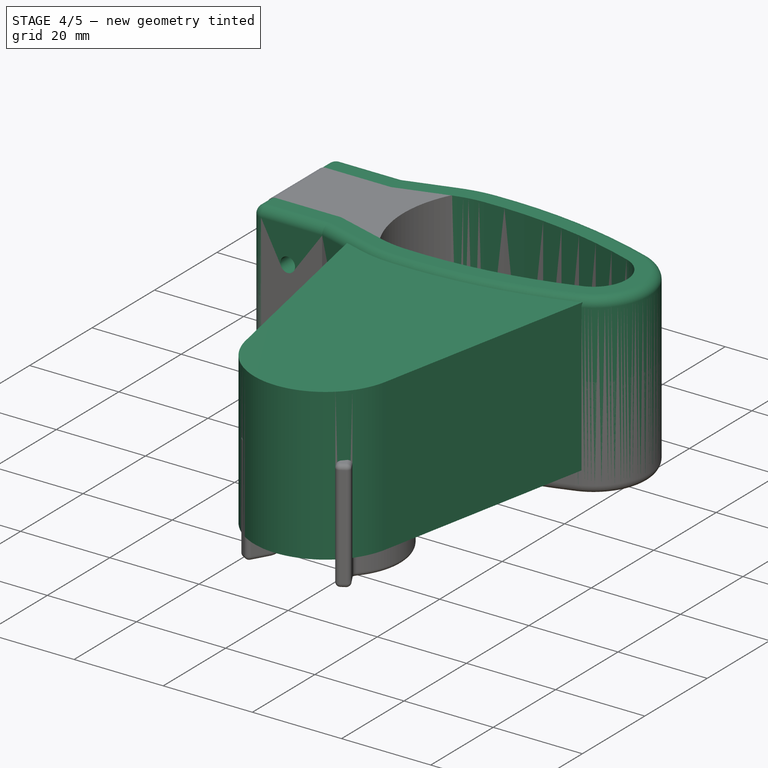
[diagram: stage 4 of 5 — iso view after this stage's code; geometry added in this stage tinted green]
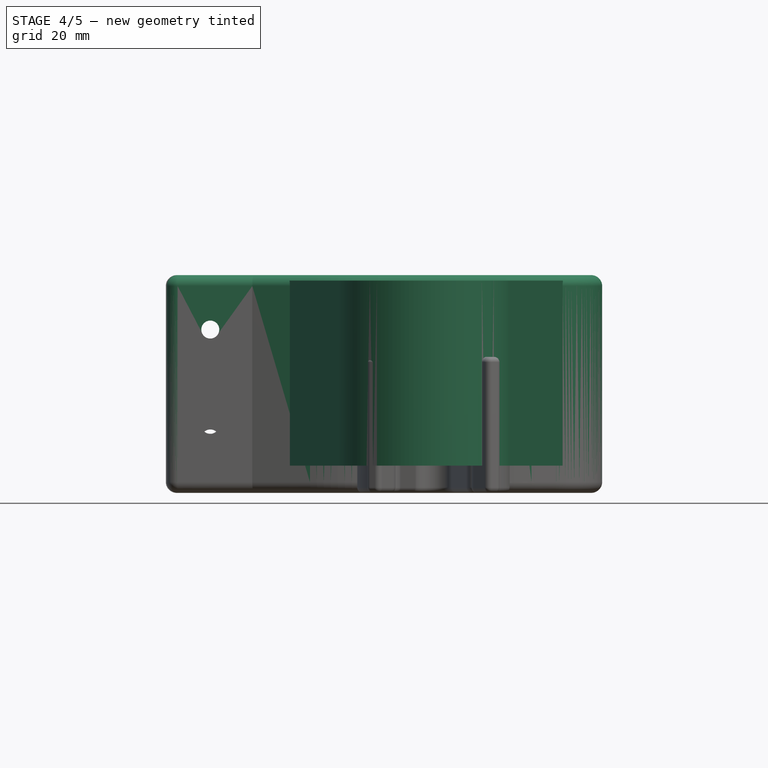
[diagram: stage 4 of 5 — front view after this stage's code; geometry added in this stage tinted green]
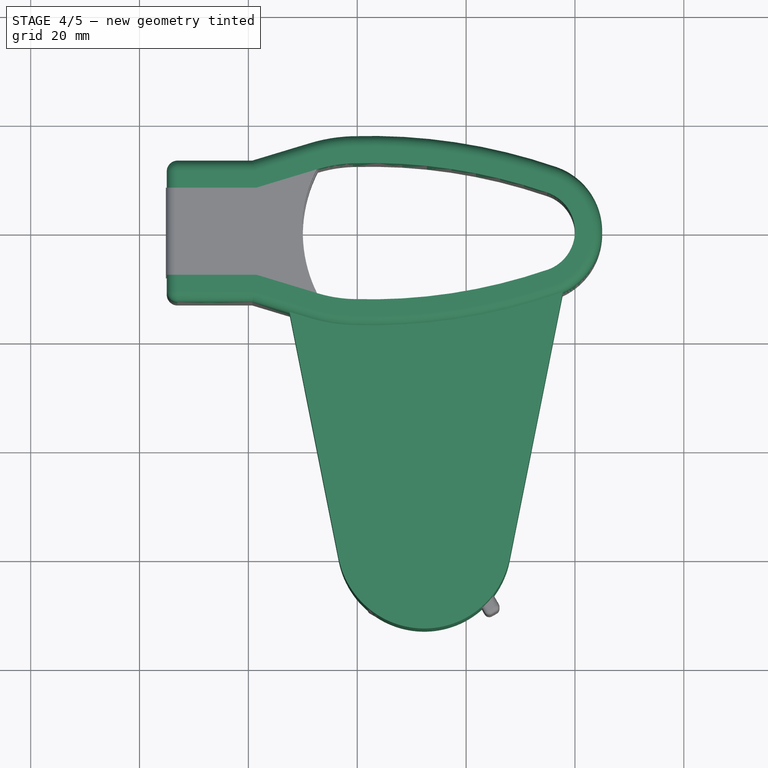
[diagram: stage 4 of 5 — top view after this stage's code; geometry added in this stage tinted green]
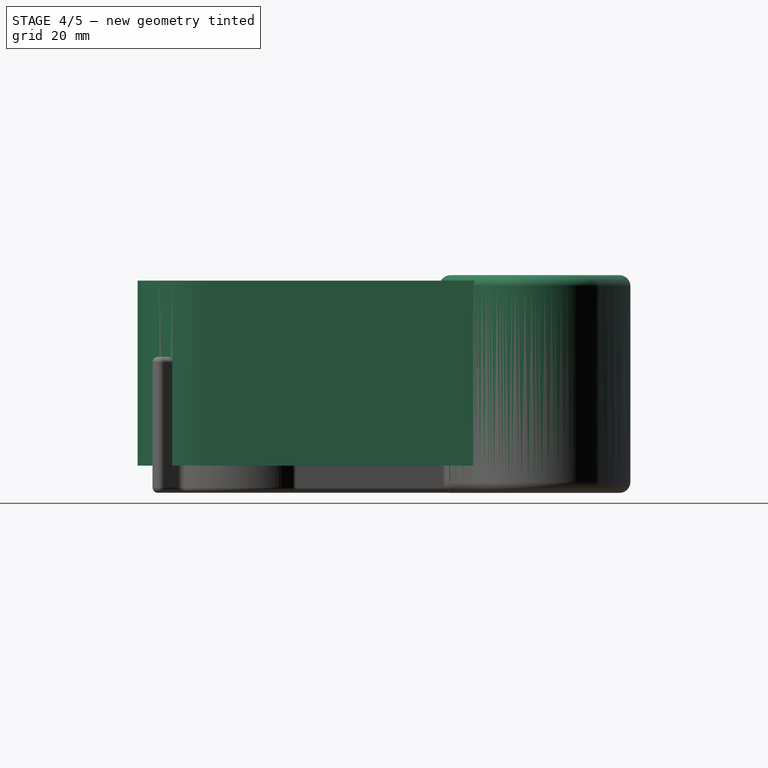
[diagram: stage 4 of 5 — right view after this stage's code; geometry added in this stage tinted green]
FEATURE [Sketcher::SketchObject] Sketch
  FullyConstrained = false
  MapMode = 5
  Support = -> [XY_Plane]
  sketch-geometry (16):
    g0: ArcOfCircle CenterX=32.5 CenterY=0 CenterZ=0 NormalX=0 NormalY=0 NormalZ=1 AngleXU=0 Radius=7.5 StartAngle=5.04366 EndAngle=7.52271
    g1: GeomPoint X=40 Y=0 Z=0
    g2: ArcOfCircle CenterX=0 CenterY=-12.5097 CenterZ=0 NormalX=0 NormalY=0 NormalZ=1 AngleXU=0 Radius=25 StartAngle=1.603 EndAngle=1.86459
    g3: ArcOfCircle CenterX=0 CenterY=12.5097 CenterZ=0 NormalX=0 NormalY=0 NormalZ=1 AngleXU=0 Radius=25 StartAngle=4.41859 EndAngle=4.68018
    g4: GeomPoint X=0 Y=13.7207 Z=0
    g5: ArcOfCircle CenterX=15 CenterY=0 CenterZ=0 NormalX=0 NormalY=0 NormalZ=1 AngleXU=0 Radius=25 StartAngle=2.66724 EndAngle=3.61594
    g6: GeomPoint X=-10 Y=0 Z=0
    g7: ArcOfCircle CenterX=2.41506 CenterY=-87.4708 CenterZ=0 NormalX=0 NormalY=0 NormalZ=1 AngleXU=0 Radius=100 StartAngle=1.23953 EndAngle=1.603
    g8: ArcOfCircle CenterX=2.41506 CenterY=87.4708 CenterZ=0 NormalX=0 NormalY=0 NormalZ=1 AngleXU=0 Radius=100 StartAngle=4.68018 EndAngle=5.04366
    g9: GeomPoint X=0 Y=12.5 Z=0
    g10: GeomPoint X=0 Y=-12.5 Z=0
    g11: LineSegment StartX=-7.23972 StartY=11.4191 StartZ=0 EndX=-18.5404 EndY=8 EndZ=0
    g12: LineSegment StartX=-18.5404 StartY=8 StartZ=0 EndX=-35 EndY=8 EndZ=0
    g13: LineSegment StartX=-35 StartY=8 StartZ=0 EndX=-35 EndY=-8 EndZ=0
    g14: LineSegment StartX=-35 StartY=-8 StartZ=0 EndX=-18.5404 EndY=-8 EndZ=0
    g15: LineSegment StartX=-18.5404 StartY=-8 StartZ=0 EndX=-7.23972 EndY=-11.4191 EndZ=0
  constraints (41):
    c: PointOnObject(g0,g-1)
    c: PointOnObject(g1,g0)
    c: PointOnObject(g1,g-1)
    c: DistanceX(g1) = 40
    c: Diameter(g0) = 15
    c: PointOnObject(g2,g-2)
    c: Equal(g3,g2)
    c: Vertical(g3,g2)
    c: Vertical(g3,g2)
    c: Vertical(g0,g0)
    c: PointOnObject(g6,g5)
    c: PointOnObject(g6,g-1)
    c: DistanceX(g6,g1) = 50
    c: Coincident(g3,g5)
    c: Coincident(g5,g2)
    c: Coincident(g7,g0)
    c: Tangent(g7,g2) = -1.5708
    c: Tangent(g8,g3) = -1.5708
    c: Tangent(g8,g0) = -1.5708
    c: Radius(g2) = 25
    c: Radius(g5) = 25
    c: Radius(g7) = 100
    c: PointOnObject(g3,g-2)
    c: PointOnObject(g9,g7)
    c: PointOnObject(g10,g8)
    c: PointOnObject(g10,g-2)
    c: PointOnObject(g9,g-2)
    c: DistanceY(g10,g9) = 25
    c: Tangent(g2,g11) = -1.5708
    c: Coincident(g11,g12)
    c: Horizontal(g12)
    c: Coincident(g12,g13)
    c: Vertical(g13)
    c: Coincident(g13,g14)
    c: Horizontal(g14)
    c: Coincident(g14,g15)
    c: Coincident(g15,g3)
    c: DistanceX(g12,g6) = 25
    c: PointOnObject(g5,g-1)
    c: Symmetric(g14,g11,g-1)
    c: DistanceY(g13,g13) = 16
FEATURE [PartDesign::Pad] Pad
  Direction = (0,0,1)
  Length = 40
  Length2 = 10
  Profile = -> Sketch
  ReferenceAxis = -> Sketch [N_Axis]
  Type = 0
FEATURE [PartDesign::Thickness] Thickness
  Base = -> Pad [Face12,Face11,Face6]
  BaseFeature = -> Pad
  Intersection = false
  Join = 1
  Mode = 0
  SupportTransform = false
  Value = 5
FEATURE [Sketcher::SketchObject] Sketch001
  AttachmentOffset = pos=(0,0,5) rot=(0,0,1;0rad)
  FullyConstrained = false
  MapMode = 5
  Placement = pos=(0,0,5) rot=(0,0,1;0rad)
  Support = -> [XY_Plane001]
  sketch-geometry (8):
    g0: ArcOfCircle CenterX=12.3019 CenterY=-57 CenterZ=0 NormalX=0 NormalY=0 NormalZ=1 AngleXU=0 Radius=16 StartAngle=3.33869 EndAngle=6.08609
    g1: LineSegment StartX=-3.38836 StartY=-60.1332 StartZ=0 EndX=-13 EndY=-12 EndZ=0
    g2: LineSegment StartX=-13 StartY=-12 StartZ=0 EndX=12.7739 EndY=-14.0777 EndZ=0
    g3: LineSegment StartX=38.9017 StartY=-5.5 StartZ=0 EndX=27.9921 EndY=-60.1332 EndZ=0
    g4: GeomPoint X=12.3019 Y=-73 Z=0
    g5: LineSegment StartX=12.7739 StartY=-14.0777 StartZ=0 EndX=34.9924 EndY=-8.14596 EndZ=0
    g6: LineSegment StartX=34.9924 StartY=-8.14596 StartZ=0 EndX=38.9017 EndY=-5.5 EndZ=0
    g7: GeomPoint X=40 Y=0 Z=0
  constraints (17):
    c: Horizontal(g0,g0)
    c: Coincident(g1,g2)
    c: Coincident(g2,g5)
    c: Coincident(g6,g3)
    c: Tangent(g3,g0) = 1.5708
    c: Tangent(g0,g1) = 1.5708
    c: PointOnObject(g4,g0)
    c: Vertical(g4,g0)
    c: DistanceY(g4) = -73
    c: Radius(g0) = 16
    c: Coincident(g5,g6)
    c: PointOnObject(g7,g-1)
    c: PointOnObject(g7,g3)
    c: DistanceX(g7) = 40
    c: DistanceX(g1) = -13
    c: DistanceY(g1) = -12
    c: DistanceY(g3) = -5.5
FEATURE [PartDesign::Pad] Pad001
  Direction = (0,0,1)
  Length = 34
  Length2 = 10
  Profile = -> Sketch001
  ReferenceAxis = -> Sketch001 [N_Axis]
  Type = 0
FEATURE [PartDesign::Fillet] Fillet001
  Base = -> Thickness [Edge35,Edge38,Edge41,Edge39,Edge40,Edge42,Edge52,Edge30,Edge29,Edge43,Edge44,Edge51]
  BaseFeature = -> Thickness
  Radius = 2
  SupportTransform = false
  UseAllEdges = false
FEATURE [PartDesign::Body] Body001  label="Rest"
  Group = -> [Sketch001,Pad001,Thickness001,Fillet,Sketch002,Pocket]
  Origin = -> Origin001
  Tip = -> Pocket
FEATURE [Sketcher::SketchObject] Sketch003
  FullyConstrained = true
  MapMode = 5
  Placement = pos=(0,0,0) rot=(1,0,0;1.5708rad)
  Support = -> [XZ_Plane]
  sketch-geometry (2):
    g0: Circle CenterX=-27 CenterY=30 CenterZ=0 NormalX=0 NormalY=0 NormalZ=1 AngleXU=0 Radius=1.65
    g1: Circle CenterX=-27 CenterY=10 CenterZ=0 NormalX=0 NormalY=0 NormalZ=1 AngleXU=0 Radius=1.65
  constraints (6):
    c: Equal(g1,g0)
    c: Diameter(g0) = 3.3
    c: Vertical(g1,g0)
    c: DistanceX(g1) = -27
    c: DistanceY(g1,g0) = 20
    c: DistanceY(g1) = 10
FEATURE [PartDesign::Pocket] Pocket001
  BaseFeature = -> Fillet001
  Direction = (0,1,2e-16)
  Length = 5
  Length2 = 5
  Midplane = true
  Profile = -> Sketch003
  ReferenceAxis = -> Sketch003 [N_Axis]
  Type = 1
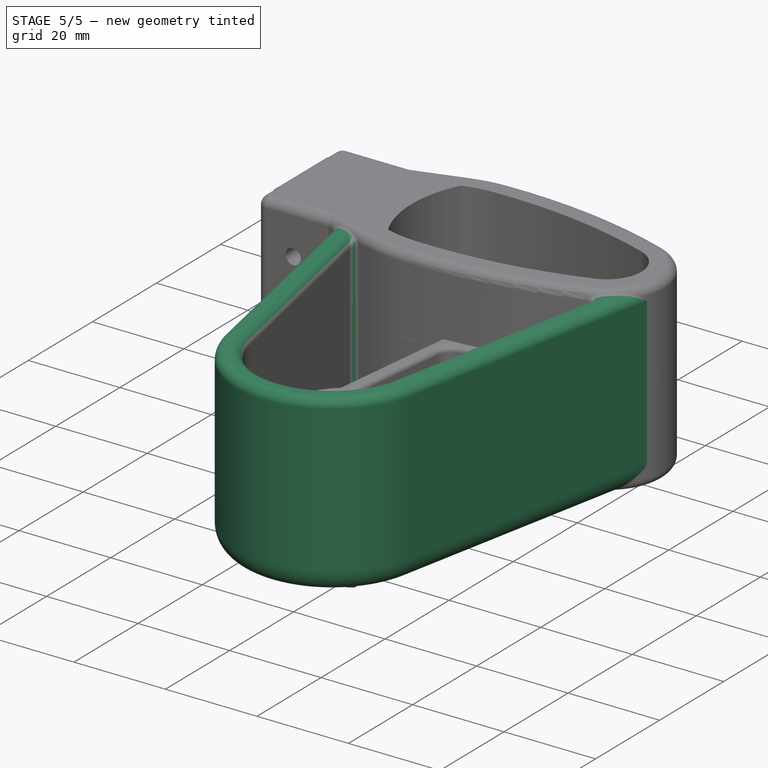
[diagram: stage 5 of 5 — iso view after this stage's code; geometry added in this stage tinted green]
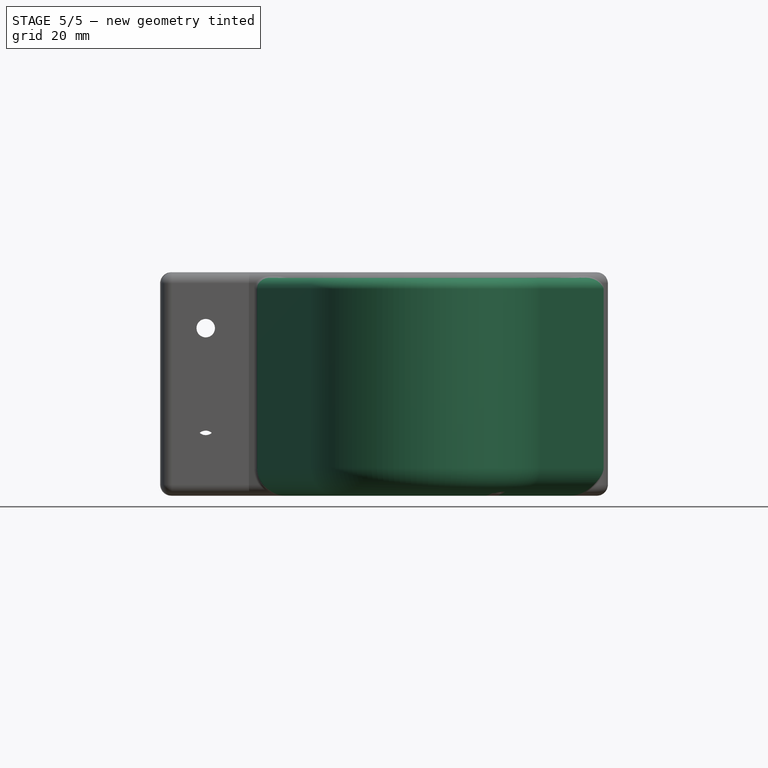
[diagram: stage 5 of 5 — front view after this stage's code; geometry added in this stage tinted green]
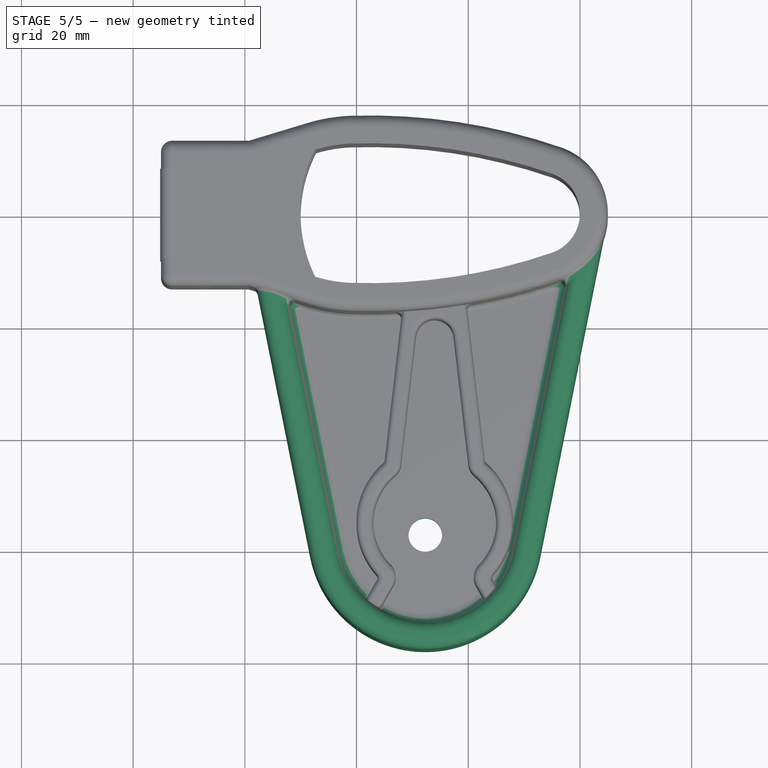
[diagram: stage 5 of 5 — top view after this stage's code; geometry added in this stage tinted green]
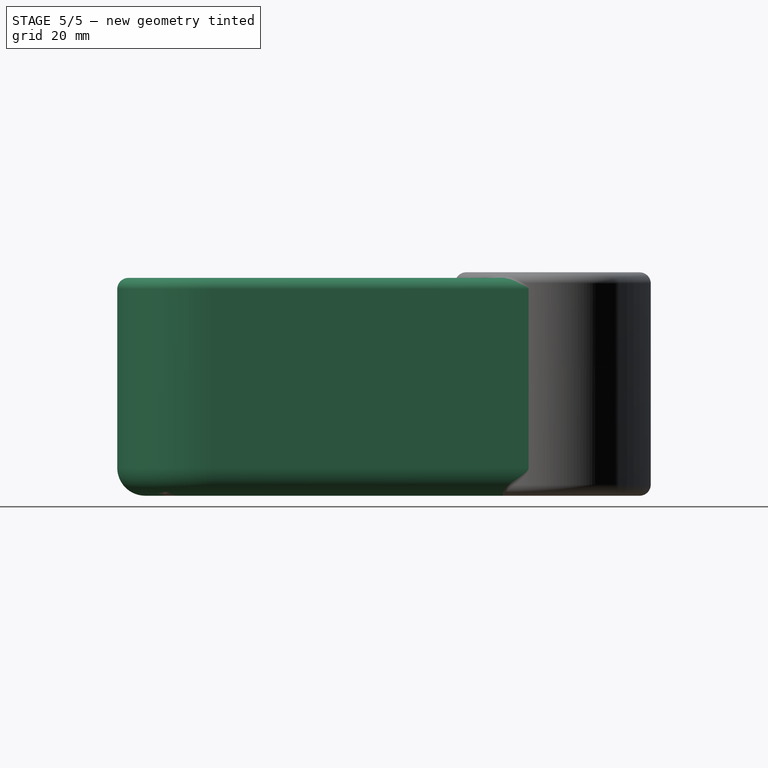
[diagram: stage 5 of 5 — right view after this stage's code; geometry added in this stage tinted green]
FEATURE [PartDesign::Thickness] Thickness001
  Base = -> Pad001 [Face4,Face3,Face5,Face8]
  BaseFeature = -> Pad001
  Intersection = false
  Join = 0
  Mode = 0
  SupportTransform = false
  Value = 5
FEATURE [PartDesign::Fillet] Fillet
  Base = -> Thickness001 [Edge6,Edge7,Edge27]
  BaseFeature = -> Thickness001
  Radius = 2
  SupportTransform = false
  UseAllEdges = false
FEATURE [Sketcher::SketchObject] Sketch002
  ExternalGeometry = -> [Fillet]
  FullyConstrained = true
  MapMode = 5
  Support = -> [XY_Plane001]
  sketch-geometry (1):
    g0: Circle CenterX=12.3019 CenterY=-57 CenterZ=0 NormalX=0 NormalY=0 NormalZ=1 AngleXU=0 Radius=3
  constraints (2):
    c: Coincident(g0,g-3)
    c: Diameter(g0) = 6
FEATURE [PartDesign::Pocket] Pocket
  BaseFeature = -> Fillet
  Direction = (0,0,-1)
  Length = 5
  Length2 = 5
  Midplane = true
  Profile = -> Sketch002
  ReferenceAxis = -> Sketch002 [N_Axis]
  Type = 1
FEATURE [PartDesign::Body] Body  label="Clip"
  Group = -> [Sketch,Pad,Thickness,Fillet001,Sketch003,Pocket001]
  Origin = -> Origin
  Tip = -> Pocket001
FEATURE [Part::MultiFuse] Fusion
  Shapes = -> [Body001,Body]
FEATURE [Part::Fillet] Fillet002  label="Bottom-Clamp"
  Base = -> Fusion
  Edges = 1 edges r=1: [Edge87]
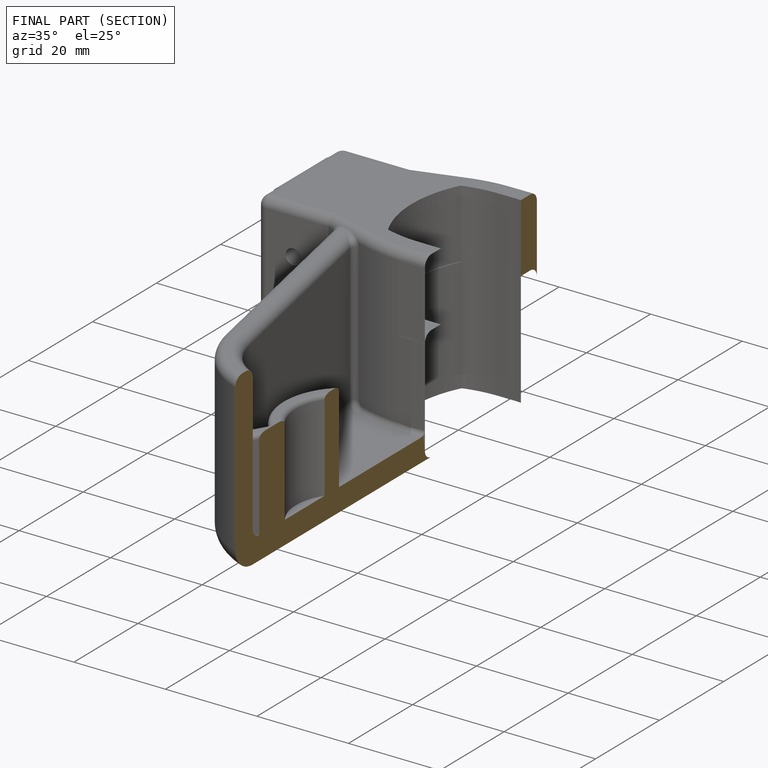
[diagram: finished part — half-section view (interior)]
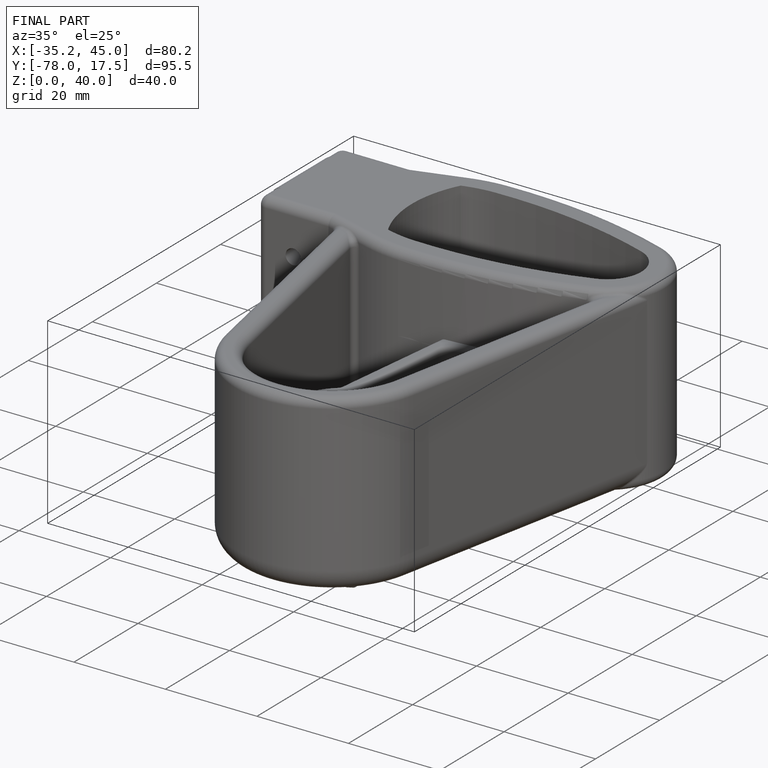
[diagram: finished part — iso view with bounding-box wireframe]
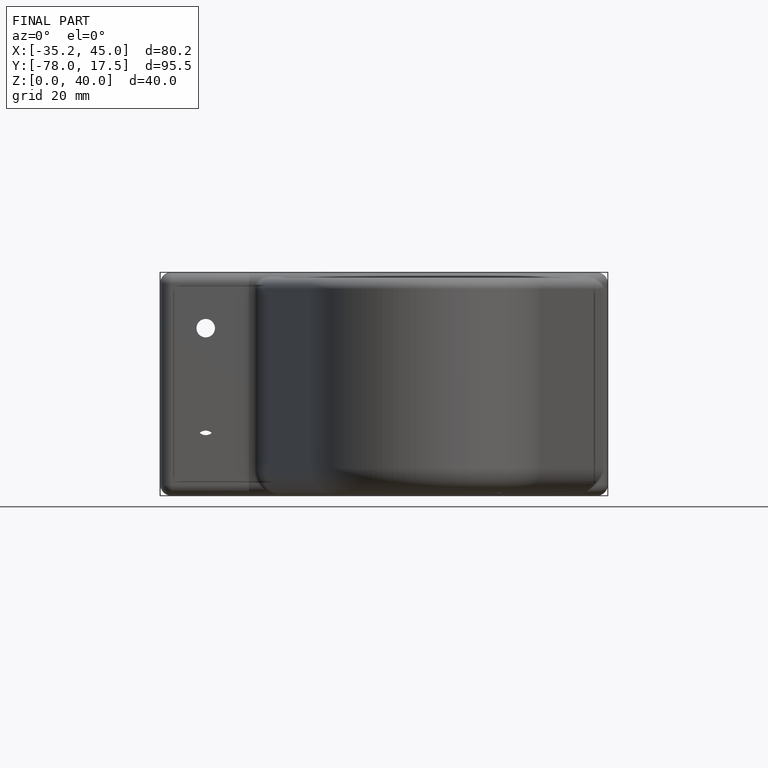
[diagram: finished part — front view with bounding-box wireframe]
